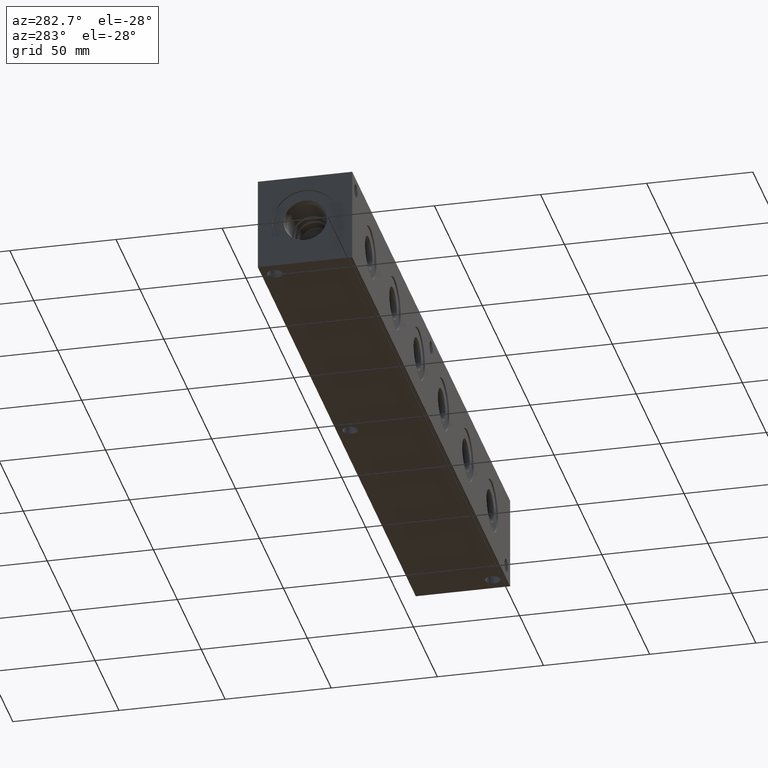
[diagram: clean part render]
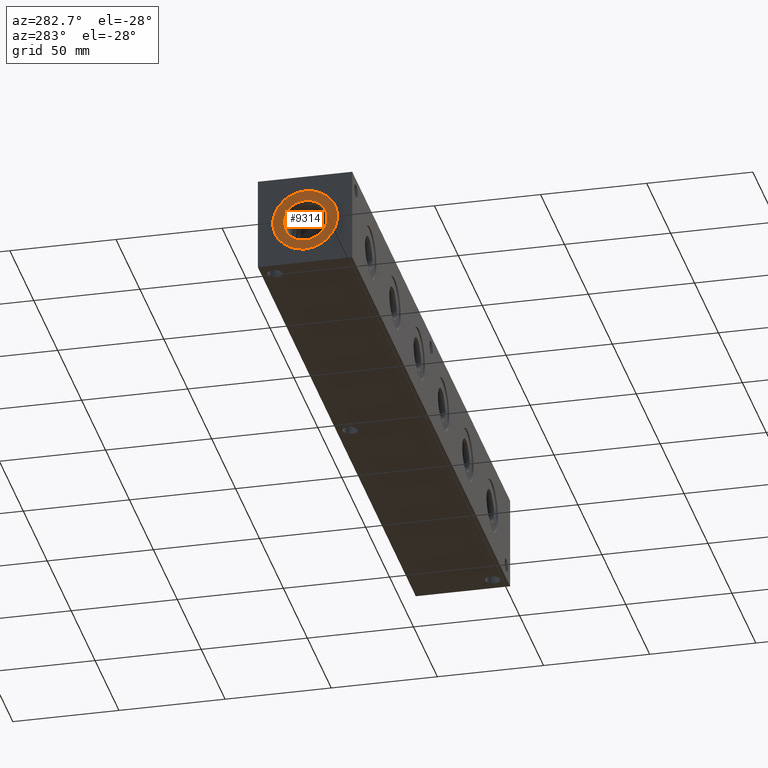
[diagram: same view with one face highlighted and labeled with its STEP entity id]
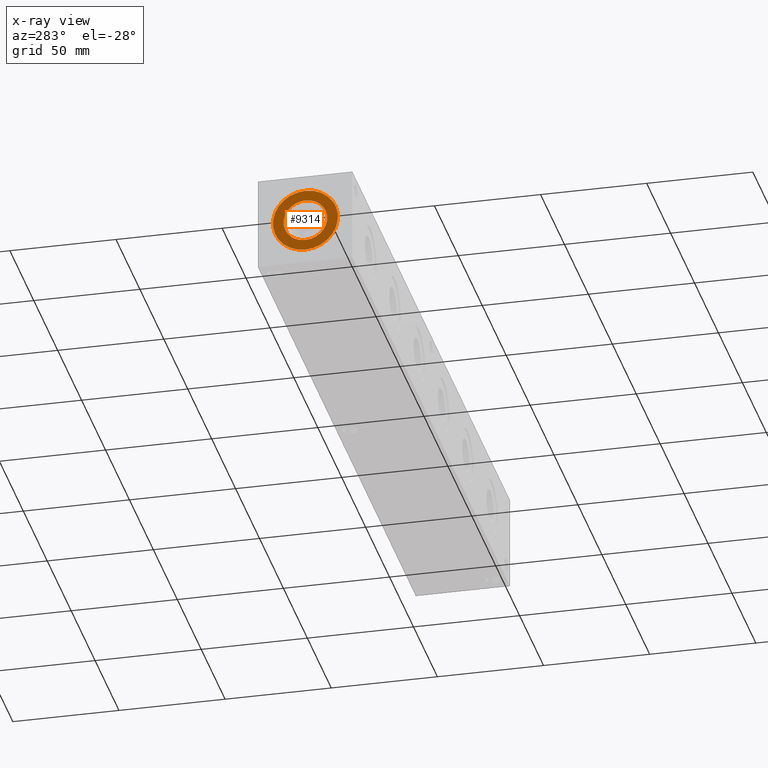
[diagram: x-ray of the same camera — body ghosted, the highlighted face saturated]
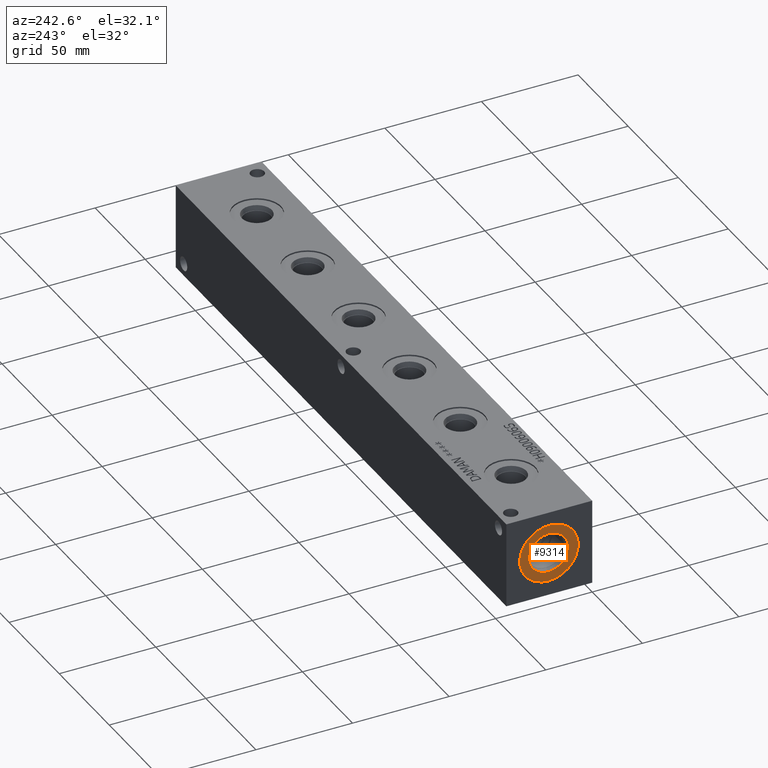
[diagram: same view with one face highlighted and labeled with its STEP entity id]
A machine part, auxiliary view. The second image highlights one B-rep face of the part: STEP entity #9314.
The next image is the same camera in x-ray: the body ghosted, the highlighted face saturated — about 0% of this face is hidden behind the body in this view.
A second angle (auxiliary view) of the same face is appended — the face is thin or edge-on in the first view.
In plain terms, the highlighted planar face has unit normal (1, 0, 0).
Its self-contained STEP definition (entity closure, byte-faithful):
#418=CIRCLE('',#9958,15.3162);
#419=CIRCLE('',#9959,15.3162);
#420=CIRCLE('',#9961,10.2997);
#421=CIRCLE('',#9962,10.2997);
#491=FACE_BOUND('',#1944,.T.);
#1397=FACE_OUTER_BOUND('',#1943,.T.);
#1943=EDGE_LOOP('',(#8232,#8233));
#1944=EDGE_LOOP('',(#8234,#8235));
#4339=VERTEX_POINT('',#16547);
#4340=VERTEX_POINT('',#16549);
#4341=VERTEX_POINT('',#16553);
#4342=VERTEX_POINT('',#16554);
#5650=EDGE_CURVE('',#4339,#4340,#418,.T.);
#5651=EDGE_CURVE('',#4340,#4339,#419,.T.);
#5652=EDGE_CURVE('',#4341,#4342,#420,.T.);
#5653=EDGE_CURVE('',#4342,#4341,#421,.T.);
#8232=ORIENTED_EDGE('',*,*,#5651,.F.);
#8233=ORIENTED_EDGE('',*,*,#5650,.F.);
#8234=ORIENTED_EDGE('',*,*,#5652,.T.);
#8235=ORIENTED_EDGE('',*,*,#5653,.T.);
#8524=PLANE('',#9960);
#9314=ADVANCED_FACE('',(#1397,#491),#8524,.F.);
#9958=AXIS2_PLACEMENT_3D('',#16550,#11951,#11952);
#9959=AXIS2_PLACEMENT_3D('',#16551,#11953,#11954);
#9960=AXIS2_PLACEMENT_3D('',#16552,#11955,#11956);
#9961=AXIS2_PLACEMENT_3D('',#16555,#11957,#11958);
#9962=AXIS2_PLACEMENT_3D('',#16556,#11959,#11960);
#11951=DIRECTION('center_axis',(1.,0.,0.));
#11952=DIRECTION('ref_axis',(0.,0.,-1.));
#11953=DIRECTION('center_axis',(1.,0.,0.));
#11954=DIRECTION('ref_axis',(0.,0.,-1.));
#11955=DIRECTION('center_axis',(1.,0.,0.));
#11956=DIRECTION('ref_axis',(0.,0.,-1.));
#11957=DIRECTION('center_axis',(1.,0.,0.));
#11958=DIRECTION('ref_axis',(0.,0.,-1.));
#11959=DIRECTION('center_axis',(1.,0.,0.));
#11960=DIRECTION('ref_axis',(0.,0.,-1.));
#16547=CARTESIAN_POINT('',(0.7874,22.225,6.9088));
#16549=CARTESIAN_POINT('',(0.7874,22.225,37.5412));
#16550=CARTESIAN_POINT('Origin',(0.7874,22.225,22.225));
#16551=CARTESIAN_POINT('Origin',(0.7874,22.225,22.225));
#16552=CARTESIAN_POINT('Origin',(0.7874,22.225,32.5247));
#16553=CARTESIAN_POINT('',(0.7874,22.225,32.5247));
#16554=CARTESIAN_POINT('',(0.7874,22.225,11.9253));
#16555=CARTESIAN_POINT('Origin',(0.7874,22.225,22.225));
#16556=CARTESIAN_POINT('Origin',(0.7874,22.225,22.225));